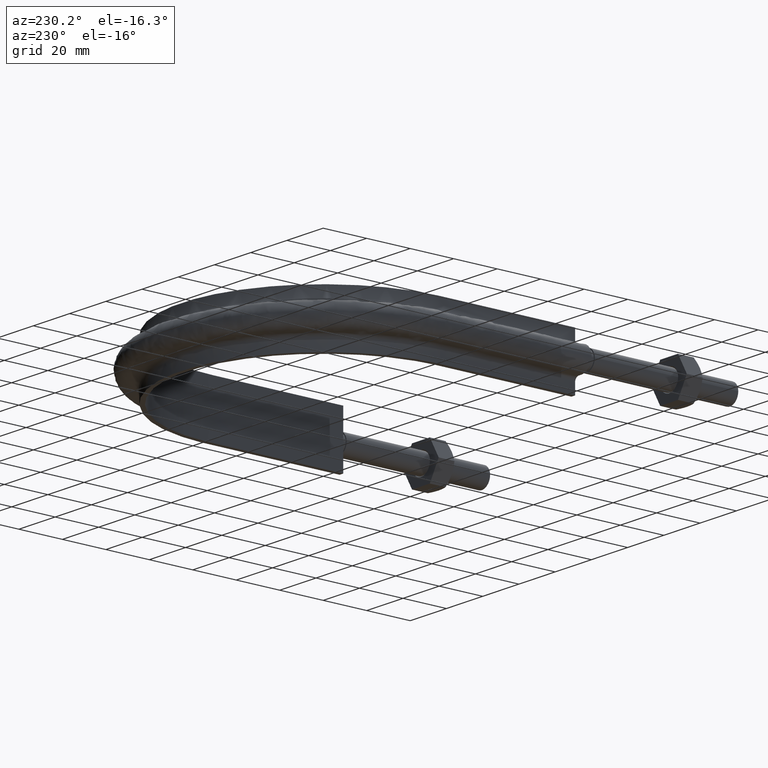
[diagram: clean part render]
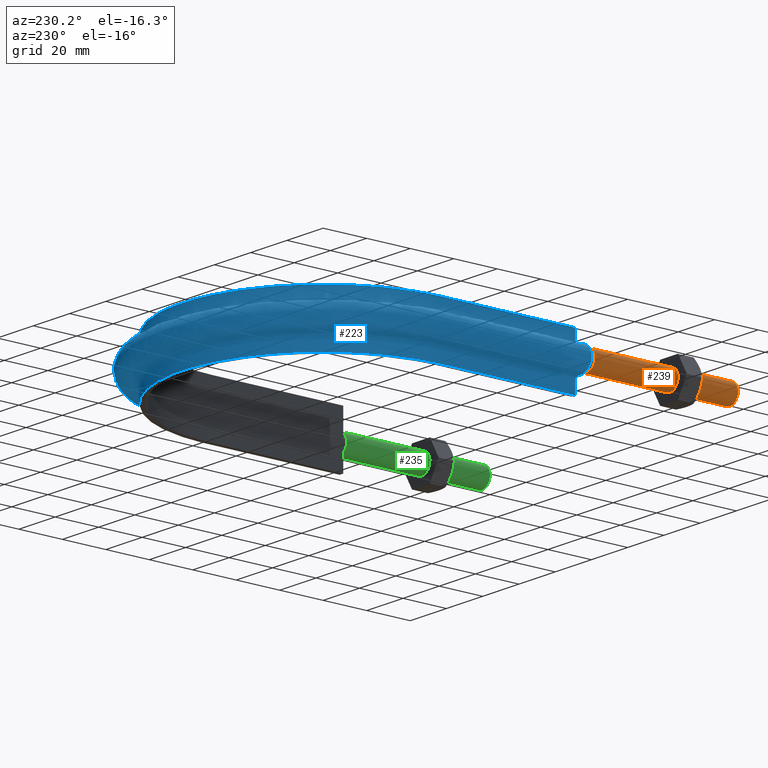
[diagram: same view with three faces highlighted in distinct colors, each labeled with its STEP entity id]
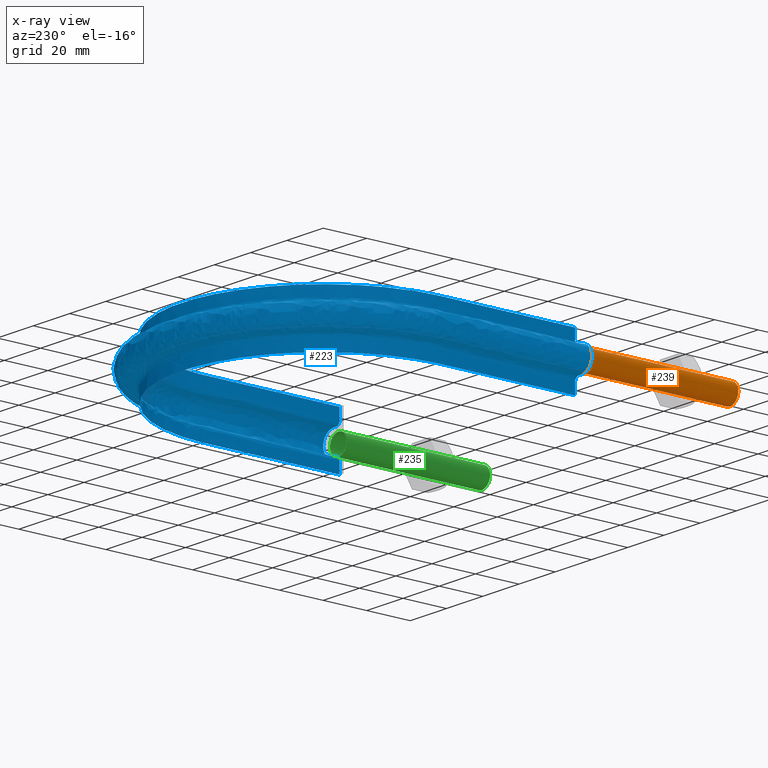
[diagram: x-ray of the same camera — body ghosted, the three highlighted faces saturated]
A machine part, auxiliary view with three faces highlighted in distinct colors.
The next image is the same camera in x-ray (body ghosted, the three faces saturated) — at least one of them is partly hidden behind the body in this view.
Their STEP definitions:

[orange] entity #239 — the highlighted cylindrical surface (bore or boss wall) has radius 4.6 mm, axis along (0, 1, 0).
#239 = ADVANCED_FACE( '', ( #340, #341 ), #342, .T. );
#340 = FACE_OUTER_BOUND( '', #1162, .T. );
#341 = FACE_OUTER_BOUND( '', #1163, .T. );
#342 = CYLINDRICAL_SURFACE( '', #1164, 4.59999999999999 );
#1162 = EDGE_LOOP( '', ( #1427 ) );
#1163 = EDGE_LOOP( '', ( #1428 ) );
#1164 = AXIS2_PLACEMENT_3D( '', #1429, #1430, #1431 );
#1427 = ORIENTED_EDGE( '', *, *, #1861, .T. );
#1428 = ORIENTED_EDGE( '', *, *, #1862, .F. );
#1429 = CARTESIAN_POINT( '', ( -68.5000000000000, 66.0000000000000, 1.21236029028415E-014 ) );
#1430 = DIRECTION( '', ( 1.22460635382238E-016, 1.00000000000000, 1.83690953073357E-016 ) );
#1431 = DIRECTION( '', ( -1.00000000000000, 1.22460635382238E-016, 0.000000000000000 ) );
#1861 = EDGE_CURVE( '', #2037, #2037, #2038, .T. );
#1862 = EDGE_CURVE( '', #2039, #2039, #2040, .T. );
#2037 = VERTEX_POINT( '', #2523 );
#2038 = CIRCLE( '', #2524, 4.59999999999999 );
#2039 = VERTEX_POINT( '', #2525 );
#2040 = CIRCLE( '', #2526, 4.59999999999999 );
#2523 = CARTESIAN_POINT( '', ( -73.1000000000000, 66.0000000000000, 1.21236029028415E-014 ) );
#2524 = AXIS2_PLACEMENT_3D( '', #2931, #2932, #2933 );
#2525 = CARTESIAN_POINT( '', ( -73.1000000000000, 8.95187244644158E-015, 0.000000000000000 ) );
#2526 = AXIS2_PLACEMENT_3D( '', #2934, #2935, #2936 );
#2931 = CARTESIAN_POINT( '', ( -68.5000000000000, 66.0000000000000, 1.21236029028415E-014 ) );
#2932 = DIRECTION( '', ( -1.22460635382238E-016, -1.00000000000000, -1.83690953073357E-016 ) );
#2933 = DIRECTION( '', ( -1.00000000000000, 1.22460635382238E-016, 0.000000000000000 ) );
#2934 = CARTESIAN_POINT( '', ( -68.5000000000000, 8.38855352368328E-015, 0.000000000000000 ) );
#2935 = DIRECTION( '', ( -1.22460635382238E-016, -1.00000000000000, -1.83690953073357E-016 ) );
#2936 = DIRECTION( '', ( -1.00000000000000, 1.22460635382238E-016, 0.000000000000000 ) );

[blue] entity #223 — the highlighted face is a freeform B-spline surface patch.
#223 = ADVANCED_FACE( '', ( #303 ), #304, .F. );
#303 = FACE_OUTER_BOUND( '', #471, .T. );
#304 = B_SPLINE_SURFACE_WITH_KNOTS( '', 3, 3, ( ( #472, #473, #474, #475, #476, #477, #478, #479, #480, #481, #482, #483, #484, #485, #486, #487 ), ( #488, #489, #490, #491, #492, #493, #494, #495, #496, #497, #498, #499, #500, #501, #502, #503 ), ( #504, #505, #506, #507, #508, #509, #510, #511, #512, #513, #514, #515, #516, #517, #518, #519 ), ( #520, #521, #522, #523, #524, #525, #526, #527, #528, #529, #530, #531, #532, #533, #534, #535 ), ( #536, #537, #538, #539, #540, #541, #542, #543, #544, #545, #546, #547, #548, #549, #550, #551 ), ( #552, #553, #554, #555, #556, #557, #558, #559, #560, #561, #562, #563, #564, #565, #566, #567 ), ( #568, #569, #570, #571, #572, #573, #574, #575, #576, #577, #578, #579, #580, #581, #582, #583 ), ( #584, #585, #586, #587, #588, #589, #590, #591, #592, #593, #594, #595, #596, #597, #598, #599 ), ( #600, #601, #602, #603, #604, #605, #606, #607, #608, #609, #610, #611, #612, #613, #614, #615 ), ( #616, #617, #618, #619, #620, #621, #622, #623, #624, #625, #626, #627, #628, #629, #630, #631 ), ( #632, #633, #634, #635, #636, #637, #638, #639, #640, #641, #642, #643, #644, #645, #646, #647 ), ( #648, #649, #650, #651, #652, #653, #654, #655, #656, #657, #658, #659, #660, #661, #662, #663 ), ( #664, #665, #666, #667, #668, #669, #670, #671, #672, #673, #674, #675, #676, #677, #678, #679 ), ( #680, #681, #682, #683, #684, #685, #686, #687, #688, #689, #690, #691, #692, #693, #694, #695 ), ( #696, #697, #698, #699, #700, #701, #702, #703, #704, #705, #706, #707, #708, #709, #710, #711 ), ( #712, #713, #714, #715, #716, #717, #718, #719, #720, #721, #722, #723, #724, #725, #726, #727 ), ( #728, #729, #730, #731, #732, #733, #734, #735, #736, #737, #738, #739, #740, #741, #742, #743 ), ( #744, #745, #746, #747, #748, #749, #750, #751, #752, #753, #754, #755, #756, #757, #758, #759 ), ( #760, #761, #762, #763, #764, #765, #766, #767, #768, #769, #770, #771, #772, #773, #774, #775 ), ( #776, #777, #778, #779, #780, #781, #782, #783, #784, #785, #786, #787, #788, #789, #790, #791 ), ( #792, #793, #794, #795, #796, #797, #798, #799, #800, #801, #802, #803, #804, #805, #806, #807 ), ( #808, #809, #810, #811, #812, #813, #814, #815, #816, #817, #818, #819, #820, #821, #822, #823 ), ( #824, #825, #826, #827, #828, #829, #830, #831, #832, #833, #834, #835, #836, #837, #838, #839 ), ( #840, #841, #842, #843, #844, #845, #846, #847, #848, #849, #850, #851, #852, #853, #854, #855 ), ( #856, #857, #858, #859, #860, #861, #862, #863, #864, #865, #866, #867, #868, #869, #870, #871 ), ( #872, #873, #874, #875, #876, #877, #878, #879, #880, #881, #882, #883, #884, #885, #886, #887 ), ( #888, #889, #890, #891, #892, #893, #894, #895, #896, #897, #898, #899, #900, #901, #902, #903 ), ( #904, #905, #906, #907, #908, #909, #910, #911, #912, #913, #914, #915, #916, #917, #918, #919 ), ( #920, #921, #922, #923, #924, #925, #926, #927, #928, #929, #930, #931, #932, #933, #934, #935 ), ( #936, #937, #938, #939, #940, #941, #942, #943, #944, #945, #946, #947, #948, #949, #950, #951 ), ( #952, #953, #954, #955, #956, #957, #958, #959, #960, #961, #962, #963, #964, #965, #966, #967 ) ), .UNSPECIFIED., .F., .F., .F., ( 4, 3, 1, 1, 1, 3, 3, 1, 1, 1, 3, 3, 1, 1, 1, 3, 4 ), ( 4, 3, 1, 1, 1, 1, 1, 1, 3, 4 ), ( 0.105263157894737, 0.157894736842105, 0.210526315789474, 0.263157894736842, 0.315789473684211, 0.368421052631579, 0.421052631578947, 0.473684210526316, 0.526315789473684, 0.578947368421053, 0.631578947368421, 0.684210526315789, 0.736842105263158, 0.789473684210526, 0.842105263157895, 0.894736842105263, 0.947368421052632 ), ( 0.000000000000000, 1.00000000000000, 2.00000000000000, 3.00000000000000, 4.00000000000000, 5.00000000000000, 6.00000000000000, 7.00000000000000, 8.00000000000000, 9.00000000000000 ), .UNSPECIFIED. );
#471 = EDGE_LOOP( '', ( #1326, #1327, #1328, #1329 ) );
#472 = CARTESIAN_POINT( '', ( -65.0000000000000, 64.4100000000000, 12.5000000000000 ) );
#473 = CARTESIAN_POINT( '', ( -65.0000000000000, 86.2766666666667, 12.5000000000000 ) );
#474 = CARTESIAN_POINT( '', ( -65.0000000000000, 108.143333333333, 12.5000000000000 ) );
#475 = CARTESIAN_POINT( '', ( -65.0000000000000, 130.010000000000, 12.5000000000000 ) );
#476 = CARTESIAN_POINT( '', ( -65.0000000000000, 139.722642194517, 12.5000000000000 ) );
#477 = CARTESIAN_POINT( '', ( -60.5621560385809, 159.179409743994, 12.5000000000000 ) );
#478 = CARTESIAN_POINT( '', ( -41.9103123469103, 182.562760860094, 12.5000000000000 ) );
#479 = CARTESIAN_POINT( '', ( -14.9576172986841, 195.543824978164, 12.5000000000000 ) );
#480 = CARTESIAN_POINT( '', ( 14.9576172986842, 195.543824978164, 12.5000000000000 ) );
#481 = CARTESIAN_POINT( '', ( 41.9103123469103, 182.562760860094, 12.5000000000000 ) );
#482 = CARTESIAN_POINT( '', ( 60.5621560385810, 159.179409743994, 12.5000000000000 ) );
#483 = CARTESIAN_POINT( '', ( 65.0000000000000, 139.722642194517, 12.5000000000000 ) );
#484 = CARTESIAN_POINT( '', ( 65.0000000000001, 130.010000000000, 12.5000000000000 ) );
#485 = CARTESIAN_POINT( '', ( 65.0000000000000, 108.143333333333, 12.5000000000000 ) );
#486 = CARTESIAN_POINT( '', ( 65.0000000000000, 86.2766666666666, 12.5000000000000 ) );
#487 = CARTESIAN_POINT( '', ( 65.0000000000000, 64.4100000000000, 12.5000000000000 ) );
#488 = CARTESIAN_POINT( '', ( -65.0000000000000, 64.4100000000000, 10.8666666666667 ) );
#489 = CARTESIAN_POINT( '', ( -65.0000000000000, 86.2766666666667, 10.8666666666667 ) );
#490 = CARTESIAN_POINT( '', ( -65.0000000000000, 108.143333333333, 10.8666666666667 ) );
#491 = CARTESIAN_POINT( '', ( -65.0000000000000, 130.010000000000, 10.8666666666667 ) );
#492 = CARTESIAN_POINT( '', ( -65.0000000000000, 139.722642194517, 10.8666666666667 ) );
#493 = CARTESIAN_POINT( '', ( -60.5621560385809, 159.179409743994, 10.8666666666667 ) );
#494 = CARTESIAN_POINT( '', ( -41.9103123469103, 182.562760860094, 10.8666666666667 ) );
#495 = CARTESIAN_POINT( '', ( -14.9576172986841, 195.543824978164, 10.8666666666667 ) );
#496 = CARTESIAN_POINT( '', ( 14.9576172986842, 195.543824978164, 10.8666666666667 ) );
#497 = CARTESIAN_POINT( '', ( 41.9103123469103, 182.562760860094, 10.8666666666667 ) );
#498 = CARTESIAN_POINT( '', ( 60.5621560385810, 159.179409743994, 10.8666666666667 ) );
#499 = CARTESIAN_POINT( '', ( 65.0000000000000, 139.722642194517, 10.8666666666667 ) );
#500 = CARTESIAN_POINT( '', ( 65.0000000000001, 130.010000000000, 10.8666666666667 ) );
#501 = CARTESIAN_POINT( '', ( 65.0000000000000, 108.143333333333, 10.8666666666667 ) );
#502 = CARTESIAN_POINT( '', ( 65.0000000000000, 86.2766666666666, 10.8666666666667 ) );
#503 = CARTESIAN_POINT( '', ( 65.0000000000000, 64.4100000000000, 10.8666666666667 ) );
#504 = CARTESIAN_POINT( '', ( -65.0000000000000, 64.4100000000000, 9.23333333333333 ) );
#505 = CARTESIAN_POINT( '', ( -65.0000000000000, 86.2766666666667, 9.23333333333333 ) );
#506 = CARTESIAN_POINT( '', ( -65.0000000000000, 108.143333333333, 9.23333333333333 ) );
#507 = CARTESIAN_POINT( '', ( -65.0000000000000, 130.010000000000, 9.23333333333333 ) );
#508 = CARTESIAN_POINT( '', ( -65.0000000000000, 139.722642194517, 9.23333333333333 ) );
#509 = CARTESIAN_POINT( '', ( -60.5621560385809, 159.179409743994, 9.23333333333333 ) );
#510 = CARTESIAN_POINT( '', ( -41.9103123469103, 182.562760860094, 9.23333333333332 ) );
#511 = CARTESIAN_POINT( '', ( -14.9576172986841, 195.543824978164, 9.23333333333334 ) );
#512 = CARTESIAN_POINT( '', ( 14.9576172986842, 195.543824978164, 9.23333333333333 ) );
#513 = CARTESIAN_POINT( '', ( 41.9103123469103, 182.562760860094, 9.23333333333332 ) );
#514 = CARTESIAN_POINT( '', ( 60.5621560385810, 159.179409743994, 9.23333333333333 ) );
#515 = CARTESIAN_POINT( '', ( 65.0000000000000, 139.722642194517, 9.23333333333333 ) );
#516 = CARTESIAN_POINT( '', ( 65.0000000000001, 130.010000000000, 9.23333333333333 ) );
#517 = CARTESIAN_POINT( '', ( 65.0000000000000, 108.143333333333, 9.23333333333333 ) );
#518 = CARTESIAN_POINT( '', ( 65.0000000000000, 86.2766666666666, 9.23333333333333 ) );
#519 = CARTESIAN_POINT( '', ( 65.0000000000000, 64.4100000000000, 9.23333333333333 ) );
#520 = CARTESIAN_POINT( '', ( -65.0000000000000, 64.4100000000000, 7.60000000000000 ) );
#521 = CARTESIAN_POINT( '', ( -65.0000000000000, 86.2766666666667, 7.60000000000000 ) );
#522 = CARTESIAN_POINT( '', ( -65.0000000000000, 108.143333333333, 7.60000000000000 ) );
#523 = CARTESIAN_POINT( '', ( -65.0000000000000, 130.010000000000, 7.60000000000000 ) );
#524 = CARTESIAN_POINT( '', ( -65.0000000000000, 139.722642194517, 7.60000000000000 ) );
#525 = CARTESIAN_POINT( '', ( -60.5621560385809, 159.179409743994, 7.60000000000000 ) );
#526 = CARTESIAN_POINT( '', ( -41.9103123469103, 182.562760860094, 7.59999999999999 ) );
#527 = CARTESIAN_POINT( '', ( -14.9576172986841, 195.543824978164, 7.60000000000001 ) );
#528 = CARTESIAN_POINT( '', ( 14.9576172986842, 195.543824978164, 7.59999999999999 ) );
#529 = CARTESIAN_POINT( '', ( 41.9103123469103, 182.562760860094, 7.59999999999999 ) );
#530 = CARTESIAN_POINT( '', ( 60.5621560385810, 159.179409743994, 7.59999999999999 ) );
#531 = CARTESIAN_POINT( '', ( 65.0000000000000, 139.722642194517, 7.60000000000000 ) );
#532 = CARTESIAN_POINT( '', ( 65.0000000000001, 130.010000000000, 7.60000000000000 ) );
#533 = CARTESIAN_POINT( '', ( 65.0000000000000, 108.143333333333, 7.60000000000000 ) );
#534 = CARTESIAN_POINT( '', ( 65.0000000000000, 86.2766666666666, 7.60000000000000 ) );
#535 = CARTESIAN_POINT( '', ( 65.0000000000000, 64.4100000000000, 7.60000000000000 ) );
#536 = CARTESIAN_POINT( '', ( -65.0000000000000, 64.4100000000000, 7.33823584172333 ) );
#537 = CARTESIAN_POINT( '', ( -65.0000000000000, 86.2766666666667, 7.33823584172333 ) );
#538 = CARTESIAN_POINT( '', ( -65.0000000000000, 108.143333333333, 7.33823584172333 ) );
#539 = CARTESIAN_POINT( '', ( -65.0000000000000, 130.010000000000, 7.33823584172333 ) );
#540 = CARTESIAN_POINT( '', ( -65.0000000000000, 139.722642194517, 7.33823584172333 ) );
#541 = CARTESIAN_POINT( '', ( -60.5621560385809, 159.179409743994, 7.33823584172333 ) );
#542 = CARTESIAN_POINT( '', ( -41.9103123469103, 182.562760860094, 7.33823584172332 ) );
#543 = CARTESIAN_POINT( '', ( -14.9576172986841, 195.543824978164, 7.33823584172334 ) );
#544 = CARTESIAN_POINT( '', ( 14.9576172986842, 195.543824978164, 7.33823584172333 ) );
#545 = CARTESIAN_POINT( '', ( 41.9103123469103, 182.562760860094, 7.33823584172333 ) );
#546 = CARTESIAN_POINT( '', ( 60.5621560385810, 159.179409743994, 7.33823584172333 ) );
#547 = CARTESIAN_POINT( '', ( 65.0000000000000, 139.722642194517, 7.33823584172333 ) );
#548 = CARTESIAN_POINT( '', ( 65.0000000000001, 130.010000000000, 7.33823584172333 ) );
#549 = CARTESIAN_POINT( '', ( 65.0000000000000, 108.143333333333, 7.33823584172333 ) );
#550 = CARTESIAN_POINT( '', ( 65.0000000000000, 86.2766666666666, 7.33823584172333 ) );
#551 = CARTESIAN_POINT( '', ( 65.0000000000000, 64.4100000000000, 7.33823584172333 ) );
#552 = CARTESIAN_POINT( '', ( -65.1041362568359, 64.4100000000000, 6.81470752517001 ) );
#553 = CARTESIAN_POINT( '', ( -65.1041362568359, 86.2766666666667, 6.81470752517001 ) );
#554 = CARTESIAN_POINT( '', ( -65.1041362568359, 108.143333333333, 6.81470752517001 ) );
#555 = CARTESIAN_POINT( '', ( -65.1041362568359, 130.010000000000, 6.81470752517001 ) );
#556 = CARTESIAN_POINT( '', ( -65.1041362568359, 139.738487808563, 6.81470752517001 ) );
#557 = CARTESIAN_POINT( '', ( -60.6591824422081, 159.226009860854, 6.81470752517001 ) );
#558 = CARTESIAN_POINT( '', ( -41.9774567015354, 182.646990200976, 6.81470752517000 ) );
#559 = CARTESIAN_POINT( '', ( -14.9815808414021, 195.648809522138, 6.81470752517001 ) );
#560 = CARTESIAN_POINT( '', ( 14.9815808414021, 195.648809522138, 6.81470752517000 ) );
#561 = CARTESIAN_POINT( '', ( 41.9774567015354, 182.646990200976, 6.81470752517000 ) );
#562 = CARTESIAN_POINT( '', ( 60.6591824422082, 159.226009860854, 6.81470752517001 ) );
#563 = CARTESIAN_POINT( '', ( 65.1041362568359, 139.738487808563, 6.81470752517001 ) );
#564 = CARTESIAN_POINT( '', ( 65.1041362568360, 130.010000000000, 6.81470752517001 ) );
#565 = CARTESIAN_POINT( '', ( 65.1041362568359, 108.143333333333, 6.81470752517001 ) );
#566 = CARTESIAN_POINT( '', ( 65.1041362568359, 86.2766666666666, 6.81470752517001 ) );
#567 = CARTESIAN_POINT( '', ( 65.1041362568359, 64.4100000000000, 6.81470752517001 ) );
#568 = CARTESIAN_POINT( '', ( -65.5489687109389, 64.4100000000000, 6.14896871093887 ) );
#569 = CARTESIAN_POINT( '', ( -65.5489687109389, 86.2766666666667, 6.14896871093887 ) );
#570 = CARTESIAN_POINT( '', ( -65.5489687109389, 108.143333333333, 6.14896871093887 ) );
#571 = CARTESIAN_POINT( '', ( -65.5489687109389, 130.010000000000, 6.14896871093887 ) );
#572 = CARTESIAN_POINT( '', ( -65.5489687109389, 139.806174545127, 6.14896871093887 ) );
#573 = CARTESIAN_POINT( '', ( -61.0736441729221, 159.425068718682, 6.14896871093887 ) );
#574 = CARTESIAN_POINT( '', ( -42.2642731183584, 183.006787504534, 6.14896871093886 ) );
#575 = CARTESIAN_POINT( '', ( -15.0839444354099, 196.097265552326, 6.14896871093888 ) );
#576 = CARTESIAN_POINT( '', ( 15.0839444354099, 196.097265552326, 6.14896871093887 ) );
#577 = CARTESIAN_POINT( '', ( 42.2642731183585, 183.006787504534, 6.14896871093887 ) );
#578 = CARTESIAN_POINT( '', ( 61.0736441729222, 159.425068718682, 6.14896871093887 ) );
#579 = CARTESIAN_POINT( '', ( 65.5489687109389, 139.806174545127, 6.14896871093887 ) );
#580 = CARTESIAN_POINT( '', ( 65.5489687109389, 130.010000000000, 6.14896871093887 ) );
#581 = CARTESIAN_POINT( '', ( 65.5489687109389, 108.143333333333, 6.14896871093887 ) );
#582 = CARTESIAN_POINT( '', ( 65.5489687109389, 86.2766666666666, 6.14896871093887 ) );
#583 = CARTESIAN_POINT( '', ( 65.5489687109389, 64.4100000000000, 6.14896871093887 ) );
#584 = CARTESIAN_POINT( '', ( -66.2147075251700, 64.4100000000000, 5.70413625683590 ) );
#585 = CARTESIAN_POINT( '', ( -66.2147075251700, 86.2766666666667, 5.70413625683590 ) );
#586 = CARTESIAN_POINT( '', ( -66.2147075251700, 108.143333333333, 5.70413625683590 ) );
#587 = CARTESIAN_POINT( '', ( -66.2147075251700, 130.010000000000, 5.70413625683590 ) );
#588 = CARTESIAN_POINT( '', ( -66.2147075251700, 139.907474905125, 5.70413625683590 ) );
#589 = CARTESIAN_POINT( '', ( -61.6939299875130, 159.722981352417, 5.70413625683591 ) );
#590 = CARTESIAN_POINT( '', ( -42.6935242206028, 183.545262222430, 5.70413625683590 ) );
#591 = CARTESIAN_POINT( '', ( -15.2371423800891, 196.768427431407, 5.70413625683591 ) );
#592 = CARTESIAN_POINT( '', ( 15.2371423800892, 196.768427431407, 5.70413625683590 ) );
#593 = CARTESIAN_POINT( '', ( 42.6935242206029, 183.545262222430, 5.70413625683590 ) );
#594 = CARTESIAN_POINT( '', ( 61.6939299875130, 159.722981352417, 5.70413625683590 ) );
#595 = CARTESIAN_POINT( '', ( 66.2147075251701, 139.907474905125, 5.70413625683590 ) );
#596 = CARTESIAN_POINT( '', ( 66.2147075251701, 130.010000000000, 5.70413625683590 ) );
#597 = CARTESIAN_POINT( '', ( 66.2147075251700, 108.143333333333, 5.70413625683590 ) );
#598 = CARTESIAN_POINT( '', ( 66.2147075251700, 86.2766666666666, 5.70413625683590 ) );
#599 = CARTESIAN_POINT( '', ( 66.2147075251700, 64.4100000000000, 5.70413625683590 ) );
#600 = CARTESIAN_POINT( '', ( -66.7382358417233, 64.4100000000000, 5.59999999999999 ) );
#601 = CARTESIAN_POINT( '', ( -66.7382358417233, 86.2766666666667, 5.59999999999999 ) );
#602 = CARTESIAN_POINT( '', ( -66.7382358417233, 108.143333333333, 5.59999999999999 ) );
#603 = CARTESIAN_POINT( '', ( -66.7382358417233, 130.010000000000, 5.59999999999999 ) );
#604 = CARTESIAN_POINT( '', ( -66.7382358417233, 139.987136186400, 5.59999999999999 ) );
#605 = CARTESIAN_POINT( '', ( -62.1817146582471, 159.957255960244, 5.60000000000000 ) );
#606 = CARTESIAN_POINT( '', ( -43.0310816862829, 183.968711714244, 5.59999999999999 ) );
#607 = CARTESIAN_POINT( '', ( -15.3576152447664, 197.296220375395, 5.60000000000000 ) );
#608 = CARTESIAN_POINT( '', ( 15.3576152447665, 197.296220375395, 5.59999999999999 ) );
#609 = CARTESIAN_POINT( '', ( 43.0310816862829, 183.968711714244, 5.59999999999999 ) );
#610 = CARTESIAN_POINT( '', ( 62.1817146582472, 159.957255960244, 5.59999999999999 ) );
#611 = CARTESIAN_POINT( '', ( 66.7382358417234, 139.987136186400, 5.59999999999999 ) );
#612 = CARTESIAN_POINT( '', ( 66.7382358417234, 130.010000000000, 5.59999999999999 ) );
#613 = CARTESIAN_POINT( '', ( 66.7382358417234, 108.143333333333, 5.59999999999999 ) );
#614 = CARTESIAN_POINT( '', ( 66.7382358417234, 86.2766666666666, 5.59999999999999 ) );
#615 = CARTESIAN_POINT( '', ( 66.7382358417234, 64.4100000000000, 5.59999999999999 ) );
#616 = CARTESIAN_POINT( '', ( -67.0000000000000, 64.4100000000000, 5.59999999999999 ) );
#617 = CARTESIAN_POINT( '', ( -67.0000000000000, 86.2766666666667, 5.59999999999999 ) );
#618 = CARTESIAN_POINT( '', ( -67.0000000000000, 108.143333333333, 5.59999999999999 ) );
#619 = CARTESIAN_POINT( '', ( -67.0000000000000, 130.010000000000, 5.59999999999999 ) );
#620 = CARTESIAN_POINT( '', ( -67.0000000000000, 140.026966827037, 5.59999999999999 ) );
#621 = CARTESIAN_POINT( '', ( -62.4256069936142, 160.074393264158, 5.60000000000000 ) );
#622 = CARTESIAN_POINT( '', ( -43.1998604191229, 184.180436460150, 5.59999999999999 ) );
#623 = CARTESIAN_POINT( '', ( -15.4178516771051, 197.560116847389, 5.60000000000000 ) );
#624 = CARTESIAN_POINT( '', ( 15.4178516771052, 197.560116847389, 5.59999999999999 ) );
#625 = CARTESIAN_POINT( '', ( 43.1998604191230, 184.180436460150, 5.59999999999999 ) );
#626 = CARTESIAN_POINT( '', ( 62.4256069936142, 160.074393264158, 5.59999999999999 ) );
#627 = CARTESIAN_POINT( '', ( 67.0000000000000, 140.026966827037, 5.59999999999999 ) );
#628 = CARTESIAN_POINT( '', ( 67.0000000000001, 130.010000000000, 5.59999999999999 ) );
#629 = CARTESIAN_POINT( '', ( 67.0000000000000, 108.143333333333, 5.59999999999999 ) );
#630 = CARTESIAN_POINT( '', ( 67.0000000000000, 86.2766666666666, 5.59999999999999 ) );
#631 = CARTESIAN_POINT( '', ( 67.0000000000000, 64.4100000000000, 5.59999999999999 ) );
#632 = CARTESIAN_POINT( '', ( -67.5000000000000, 64.4100000000000, 5.60000000000000 ) );
#633 = CARTESIAN_POINT( '', ( -67.5000000000000, 86.2766666666667, 5.60000000000000 ) );
#634 = CARTESIAN_POINT( '', ( -67.5000000000000, 108.143333333333, 5.60000000000000 ) );
#635 = CARTESIAN_POINT( '', ( -67.5000000000000, 130.010000000000, 5.60000000000000 ) );
#636 = CARTESIAN_POINT( '', ( -67.5000000000000, 140.103047985167, 5.60000000000000 ) );
#637 = CARTESIAN_POINT( '', ( -62.8914697323725, 160.298139144199, 5.60000000000000 ) );
#638 = CARTESIAN_POINT( '', ( -43.5222474371760, 184.584855360165, 5.60000000000000 ) );
#639 = CARTESIAN_POINT( '', ( -15.5329102717104, 198.064189814695, 5.60000000000001 ) );
#640 = CARTESIAN_POINT( '', ( 15.5329102717105, 198.064189814695, 5.60000000000000 ) );
#641 = CARTESIAN_POINT( '', ( 43.5222474371761, 184.584855360165, 5.60000000000000 ) );
#642 = CARTESIAN_POINT( '', ( 62.8914697323725, 160.298139144199, 5.60000000000000 ) );
#643 = CARTESIAN_POINT( '', ( 67.5000000000000, 140.103047985167, 5.60000000000000 ) );
#644 = CARTESIAN_POINT( '', ( 67.5000000000000, 130.010000000000, 5.60000000000000 ) );
#645 = CARTESIAN_POINT( '', ( 67.5000000000000, 108.143333333333, 5.60000000000000 ) );
#646 = CARTESIAN_POINT( '', ( 67.5000000000000, 86.2766666666666, 5.60000000000000 ) );
#647 = CARTESIAN_POINT( '', ( 67.5000000000000, 64.4100000000000, 5.60000000000000 ) );
#648 = CARTESIAN_POINT( '', ( -68.0000000000000, 64.4100000000000, 5.60000000000000 ) );
#649 = CARTESIAN_POINT( '', ( -68.0000000000000, 86.2766666666667, 5.60000000000000 ) );
#650 = CARTESIAN_POINT( '', ( -68.0000000000000, 108.143333333333, 5.60000000000000 ) );
#651 = CARTESIAN_POINT( '', ( -68.0000000000000, 130.010000000000, 5.60000000000000 ) );
#652 = CARTESIAN_POINT( '', ( -68.0000000000000, 140.179129143297, 5.60000000000000 ) );
#653 = CARTESIAN_POINT( '', ( -63.3573324711308, 160.521885024240, 5.60000000000000 ) );
#654 = CARTESIAN_POINT( '', ( -43.8446344552292, 184.989274260179, 5.60000000000000 ) );
#655 = CARTESIAN_POINT( '', ( -15.6479688663156, 198.568262782001, 5.60000000000001 ) );
#656 = CARTESIAN_POINT( '', ( 15.6479688663157, 198.568262782001, 5.60000000000000 ) );
#657 = CARTESIAN_POINT( '', ( 43.8446344552293, 184.989274260179, 5.60000000000000 ) );
#658 = CARTESIAN_POINT( '', ( 63.3573324711308, 160.521885024240, 5.60000000000000 ) );
#659 = CARTESIAN_POINT( '', ( 68.0000000000000, 140.179129143297, 5.60000000000000 ) );
#660 = CARTESIAN_POINT( '', ( 68.0000000000000, 130.010000000000, 5.60000000000000 ) );
#661 = CARTESIAN_POINT( '', ( 68.0000000000000, 108.143333333333, 5.60000000000000 ) );
#662 = CARTESIAN_POINT( '', ( 68.0000000000000, 86.2766666666666, 5.60000000000000 ) );
#663 = CARTESIAN_POINT( '', ( 68.0000000000000, 64.4100000000000, 5.60000000000000 ) );
#664 = CARTESIAN_POINT( '', ( -68.5000000000000, 64.4100000000000, 5.60000000000000 ) );
#665 = CARTESIAN_POINT( '', ( -68.5000000000000, 86.2766666666667, 5.60000000000000 ) );
#666 = CARTESIAN_POINT( '', ( -68.5000000000000, 108.143333333333, 5.60000000000000 ) );
#667 = CARTESIAN_POINT( '', ( -68.5000000000000, 130.010000000000, 5.60000000000000 ) );
#668 = CARTESIAN_POINT( '', ( -68.5000000000000, 140.255210301427, 5.60000000000000 ) );
#669 = CARTESIAN_POINT( '', ( -63.8231952098891, 160.745630904281, 5.60000000000000 ) );
#670 = CARTESIAN_POINT( '', ( -44.1670214732823, 185.393693160193, 5.60000000000000 ) );
#671 = CARTESIAN_POINT( '', ( -15.7630274609209, 199.072335749307, 5.60000000000001 ) );
#672 = CARTESIAN_POINT( '', ( 15.7630274609210, 199.072335749307, 5.60000000000000 ) );
#673 = CARTESIAN_POINT( '', ( 44.1670214732824, 185.393693160193, 5.60000000000000 ) );
#674 = CARTESIAN_POINT( '', ( 63.8231952098892, 160.745630904281, 5.60000000000000 ) );
#675 = CARTESIAN_POINT( '', ( 68.5000000000000, 140.255210301427, 5.60000000000000 ) );
#676 = CARTESIAN_POINT( '', ( 68.5000000000000, 130.010000000000, 5.60000000000000 ) );
#677 = CARTESIAN_POINT( '', ( 68.5000000000000, 108.143333333333, 5.60000000000000 ) );
#678 = CARTESIAN_POINT( '', ( 68.5000000000000, 86.2766666666666, 5.60000000000000 ) );
#679 = CARTESIAN_POINT( '', ( 68.5000000000000, 64.4100000000000, 5.60000000000000 ) );
#680 = CARTESIAN_POINT( '', ( -69.9627416997969, 64.4100000000000, 5.60000000000000 ) );
#681 = CARTESIAN_POINT( '', ( -69.9627416997969, 86.2766666666667, 5.60000000000000 ) );
#682 = CARTESIAN_POINT( '', ( -69.9627416997969, 108.143333333333, 5.60000000000000 ) );
#683 = CARTESIAN_POINT( '', ( -69.9627416997969, 130.010000000000, 5.60000000000000 ) );
#684 = CARTESIAN_POINT( '', ( -69.9627416997969, 140.477784466558, 5.60000000000000 ) );
#685 = CARTESIAN_POINT( '', ( -65.1860689186159, 161.400195762068, 5.60000000000000 ) );
#686 = CARTESIAN_POINT( '', ( -45.1101593428414, 186.576813938667, 5.59999999999999 ) );
#687 = CARTESIAN_POINT( '', ( -16.0996294694192, 200.546992847346, 5.60000000000001 ) );
#688 = CARTESIAN_POINT( '', ( 16.0996294694193, 200.546992847346, 5.60000000000000 ) );
#689 = CARTESIAN_POINT( '', ( 45.1101593428415, 186.576813938667, 5.59999999999999 ) );
#690 = CARTESIAN_POINT( '', ( 65.1860689186160, 161.400195762068, 5.59999999999999 ) );
#691 = CARTESIAN_POINT( '', ( 69.9627416997970, 140.477784466558, 5.60000000000000 ) );
#692 = CARTESIAN_POINT( '', ( 69.9627416997970, 130.010000000000, 5.60000000000000 ) );
#693 = CARTESIAN_POINT( '', ( 69.9627416997970, 108.143333333333, 5.60000000000000 ) );
#694 = CARTESIAN_POINT( '', ( 69.9627416997970, 86.2766666666666, 5.60000000000000 ) );
#695 = CARTESIAN_POINT( '', ( 69.9627416997970, 64.4100000000000, 5.60000000000000 ) );
#696 = CARTESIAN_POINT( '', ( -72.8882250993908, 64.4100000000000, 4.38822509939086 ) );
#697 = CARTESIAN_POINT( '', ( -72.8882250993908, 86.2766666666667, 4.38822509939086 ) );
#698 = CARTESIAN_POINT( '', ( -72.8882250993908, 108.143333333333, 4.38822509939086 ) );
#699 = CARTESIAN_POINT( '', ( -72.8882250993908, 130.010000000000, 4.38822509939086 ) );
#700 = CARTESIAN_POINT( '', ( -72.8882250993908, 140.922932796821, 4.38822509939086 ) );
#701 = CARTESIAN_POINT( '', ( -67.9118163360695, 162.709325477643, 4.38822509939086 ) );
#702 = CARTESIAN_POINT( '', ( -46.9964350819596, 188.943055495614, 4.38822509939085 ) );
#703 = CARTESIAN_POINT( '', ( -16.7728334864158, 203.496307043423, 4.38822509939086 ) );
#704 = CARTESIAN_POINT( '', ( 16.7728334864159, 203.496307043423, 4.38822509939086 ) );
#705 = CARTESIAN_POINT( '', ( 46.9964350819597, 188.943055495614, 4.38822509939086 ) );
#706 = CARTESIAN_POINT( '', ( 67.9118163360695, 162.709325477643, 4.38822509939086 ) );
#707 = CARTESIAN_POINT( '', ( 72.8882250993909, 140.922932796821, 4.38822509939086 ) );
#708 = CARTESIAN_POINT( '', ( 72.8882250993909, 130.010000000000, 4.38822509939086 ) );
#709 = CARTESIAN_POINT( '', ( 72.8882250993909, 108.143333333333, 4.38822509939086 ) );
#710 = CARTESIAN_POINT( '', ( 72.8882250993909, 86.2766666666666, 4.38822509939086 ) );
#711 = CARTESIAN_POINT( '', ( 72.8882250993909, 64.4100000000000, 4.38822509939086 ) );
#712 = CARTESIAN_POINT( '', ( -74.7058874503046, 64.4100000000000, 1.38308419891421E-015 ) );
#713 = CARTESIAN_POINT( '', ( -74.7058874503046, 86.2766666666667, 1.38308419891421E-015 ) );
#714 = CARTESIAN_POINT( '', ( -74.7058874503045, 108.143333333333, 1.38308419891421E-015 ) );
#715 = CARTESIAN_POINT( '', ( -74.7058874503045, 130.010000000000, 1.38308419891421E-015 ) );
#716 = CARTESIAN_POINT( '', ( -74.7058874503046, 141.199512510315, 1.38308419891421E-015 ) );
#717 = CARTESIAN_POINT( '', ( -69.6053786579386, 163.522714402288, 1.38308419891421E-015 ) );
#718 = CARTESIAN_POINT( '', ( -48.1684165722367, 190.413249512722, 1.38308419891421E-015 ) );
#719 = CARTESIAN_POINT( '', ( -17.1911088375419, 205.328775952995, 1.38308419891421E-015 ) );
#720 = CARTESIAN_POINT( '', ( 17.1911088375420, 205.328775952995, 1.38308419891421E-015 ) );
#721 = CARTESIAN_POINT( '', ( 48.1684165722368, 190.413249512721, 1.38308419891421E-015 ) );
#722 = CARTESIAN_POINT( '', ( 69.6053786579386, 163.522714402288, 1.38308419891421E-015 ) );
#723 = CARTESIAN_POINT( '', ( 74.7058874503046, 141.199512510315, 1.38308419891421E-015 ) );
#724 = CARTESIAN_POINT( '', ( 74.7058874503046, 130.010000000000, 1.38308419891421E-015 ) );
#725 = CARTESIAN_POINT( '', ( 74.7058874503046, 108.143333333333, 1.38308419891421E-015 ) );
#726 = CARTESIAN_POINT( '', ( 74.7058874503046, 86.2766666666666, 1.38308419891421E-015 ) );
#727 = CARTESIAN_POINT( '', ( 74.7058874503046, 64.4100000000000, 1.38308419891421E-015 ) );
#728 = CARTESIAN_POINT( '', ( -72.8882250993908, 64.4100000000000, -4.38822509939086 ) );
#729 = CARTESIAN_POINT( '', ( -72.8882250993908, 86.2766666666667, -4.38822509939086 ) );
#730 = CARTESIAN_POINT( '', ( -72.8882250993908, 108.143333333333, -4.38822509939086 ) );
#731 = CARTESIAN_POINT( '', ( -72.8882250993908, 130.010000000000, -4.38822509939086 ) );
#732 = CARTESIAN_POINT( '', ( -72.8882250993908, 140.922932796821, -4.38822509939086 ) );
#733 = CARTESIAN_POINT( '', ( -67.9118163360695, 162.709325477643, -4.38822509939086 ) );
#734 = CARTESIAN_POINT( '', ( -46.9964350819596, 188.943055495614, -4.38822509939085 ) );
#735 = CARTESIAN_POINT( '', ( -16.7728334864158, 203.496307043423, -4.38822509939086 ) );
#736 = CARTESIAN_POINT( '', ( 16.7728334864159, 203.496307043423, -4.38822509939086 ) );
#737 = CARTESIAN_POINT( '', ( 46.9964350819597, 188.943055495614, -4.38822509939085 ) );
#738 = CARTESIAN_POINT( '', ( 67.9118163360695, 162.709325477643, -4.38822509939086 ) );
#739 = CARTESIAN_POINT( '', ( 72.8882250993909, 140.922932796821, -4.38822509939086 ) );
#740 = CARTESIAN_POINT( '', ( 72.8882250993909, 130.010000000000, -4.38822509939086 ) );
#741 = CARTESIAN_POINT( '', ( 72.8882250993909, 108.143333333333, -4.38822509939086 ) );
#742 = CARTESIAN_POINT( '', ( 72.8882250993909, 86.2766666666666, -4.38822509939086 ) );
#743 = CARTESIAN_POINT( '', ( 72.8882250993909, 64.4100000000000, -4.38822509939086 ) );
#744 = CARTESIAN_POINT( '', ( -69.9627416997969, 64.4100000000000, -5.59999999999999 ) );
#745 = CARTESIAN_POINT( '', ( -69.9627416997969, 86.2766666666667, -5.59999999999999 ) );
#746 = CARTESIAN_POINT( '', ( -69.9627416997969, 108.143333333333, -5.59999999999999 ) );
#747 = CARTESIAN_POINT( '', ( -69.9627416997969, 130.010000000000, -5.59999999999999 ) );
#748 = CARTESIAN_POINT( '', ( -69.9627416997969, 140.477784466558, -5.59999999999999 ) );
#749 = CARTESIAN_POINT( '', ( -65.1860689186159, 161.400195762068, -5.60000000000000 ) );
#750 = CARTESIAN_POINT( '', ( -45.1101593428414, 186.576813938667, -5.59999999999999 ) );
#751 = CARTESIAN_POINT( '', ( -16.0996294694192, 200.546992847346, -5.60000000000000 ) );
#752 = CARTESIAN_POINT( '', ( 16.0996294694193, 200.546992847346, -5.59999999999999 ) );
#753 = CARTESIAN_POINT( '', ( 45.1101593428415, 186.576813938667, -5.59999999999999 ) );
#754 = CARTESIAN_POINT( '', ( 65.1860689186160, 161.400195762068, -5.59999999999999 ) );
#755 = CARTESIAN_POINT( '', ( 69.9627416997970, 140.477784466558, -5.59999999999999 ) );
#756 = CARTESIAN_POINT( '', ( 69.9627416997970, 130.010000000000, -5.59999999999999 ) );
#757 = CARTESIAN_POINT( '', ( 69.9627416997970, 108.143333333333, -5.59999999999999 ) );
#758 = CARTESIAN_POINT( '', ( 69.9627416997970, 86.2766666666666, -5.59999999999999 ) );
#759 = CARTESIAN_POINT( '', ( 69.9627416997970, 64.4100000000000, -5.59999999999999 ) );
#760 = CARTESIAN_POINT( '', ( -68.5000000000000, 64.4100000000000, -5.59999999999999 ) );
#761 = CARTESIAN_POINT( '', ( -68.5000000000000, 86.2766666666667, -5.59999999999999 ) );
#762 = CARTESIAN_POINT( '', ( -68.5000000000000, 108.143333333333, -5.59999999999999 ) );
#763 = CARTESIAN_POINT( '', ( -68.5000000000000, 130.010000000000, -5.59999999999999 ) );
#764 = CARTESIAN_POINT( '', ( -68.5000000000000, 140.255210301427, -5.59999999999999 ) );
#765 = CARTESIAN_POINT( '', ( -63.8231952098891, 160.745630904281, -5.59999999999999 ) );
#766 = CARTESIAN_POINT( '', ( -44.1670214732823, 185.393693160193, -5.59999999999998 ) );
#767 = CARTESIAN_POINT( '', ( -15.7630274609209, 199.072335749307, -5.60000000000000 ) );
#768 = CARTESIAN_POINT( '', ( 15.7630274609210, 199.072335749307, -5.59999999999999 ) );
#769 = CARTESIAN_POINT( '', ( 44.1670214732824, 185.393693160193, -5.59999999999999 ) );
#770 = CARTESIAN_POINT( '', ( 63.8231952098892, 160.745630904281, -5.59999999999999 ) );
#771 = CARTESIAN_POINT( '', ( 68.5000000000000, 140.255210301427, -5.59999999999999 ) );
#772 = CARTESIAN_POINT( '', ( 68.5000000000000, 130.010000000000, -5.59999999999999 ) );
#773 = CARTESIAN_POINT( '', ( 68.5000000000000, 108.143333333333, -5.59999999999999 ) );
#774 = CARTESIAN_POINT( '', ( 68.5000000000000, 86.2766666666666, -5.59999999999999 ) );
#775 = CARTESIAN_POINT( '', ( 68.5000000000000, 64.4100000000000, -5.59999999999999 ) );
#776 = CARTESIAN_POINT( '', ( -68.0000000000000, 64.4100000000000, -5.60000000000000 ) );
#777 = CARTESIAN_POINT( '', ( -68.0000000000000, 86.2766666666667, -5.60000000000000 ) );
#778 = CARTESIAN_POINT( '', ( -68.0000000000000, 108.143333333333, -5.60000000000000 ) );
#779 = CARTESIAN_POINT( '', ( -68.0000000000000, 130.010000000000, -5.60000000000000 ) );
#780 = CARTESIAN_POINT( '', ( -68.0000000000000, 140.179129143297, -5.60000000000000 ) );
#781 = CARTESIAN_POINT( '', ( -63.3573324711308, 160.521885024240, -5.60000000000000 ) );
#782 = CARTESIAN_POINT( '', ( -43.8446344552292, 184.989274260179, -5.59999999999999 ) );
#783 = CARTESIAN_POINT( '', ( -15.6479688663156, 198.568262782001, -5.60000000000001 ) );
#784 = CARTESIAN_POINT( '', ( 15.6479688663157, 198.568262782001, -5.60000000000000 ) );
#785 = CARTESIAN_POINT( '', ( 43.8446344552293, 184.989274260179, -5.59999999999999 ) );
#786 = CARTESIAN_POINT( '', ( 63.3573324711308, 160.521885024240, -5.59999999999999 ) );
#787 = CARTESIAN_POINT( '', ( 68.0000000000000, 140.179129143297, -5.60000000000000 ) );
#788 = CARTESIAN_POINT( '', ( 68.0000000000000, 130.010000000000, -5.60000000000000 ) );
#789 = CARTESIAN_POINT( '', ( 68.0000000000000, 108.143333333333, -5.60000000000000 ) );
#790 = CARTESIAN_POINT( '', ( 68.0000000000000, 86.2766666666666, -5.60000000000000 ) );
#791 = CARTESIAN_POINT( '', ( 68.0000000000000, 64.4100000000000, -5.60000000000000 ) );
#792 = CARTESIAN_POINT( '', ( -67.5000000000000, 64.4100000000000, -5.60000000000000 ) );
#793 = CARTESIAN_POINT( '', ( -67.5000000000000, 86.2766666666667, -5.60000000000000 ) );
#794 = CARTESIAN_POINT( '', ( -67.5000000000000, 108.143333333333, -5.60000000000000 ) );
#795 = CARTESIAN_POINT( '', ( -67.5000000000000, 130.010000000000, -5.60000000000000 ) );
#796 = CARTESIAN_POINT( '', ( -67.5000000000000, 140.103047985167, -5.60000000000000 ) );
#797 = CARTESIAN_POINT( '', ( -62.8914697323725, 160.298139144199, -5.60000000000000 ) );
#798 = CARTESIAN_POINT( '', ( -43.5222474371760, 184.584855360165, -5.59999999999999 ) );
#799 = CARTESIAN_POINT( '', ( -15.5329102717104, 198.064189814695, -5.60000000000001 ) );
#800 = CARTESIAN_POINT( '', ( 15.5329102717105, 198.064189814695, -5.60000000000000 ) );
#801 = CARTESIAN_POINT( '', ( 43.5222474371761, 184.584855360165, -5.59999999999999 ) );
#802 = CARTESIAN_POINT( '', ( 62.8914697323725, 160.298139144199, -5.59999999999999 ) );
#803 = CARTESIAN_POINT( '', ( 67.5000000000000, 140.103047985167, -5.60000000000000 ) );
#804 = CARTESIAN_POINT( '', ( 67.5000000000000, 130.010000000000, -5.60000000000000 ) );
#805 = CARTESIAN_POINT( '', ( 67.5000000000000, 108.143333333333, -5.60000000000000 ) );
#806 = CARTESIAN_POINT( '', ( 67.5000000000000, 86.2766666666666, -5.60000000000000 ) );
#807 = CARTESIAN_POINT( '', ( 67.5000000000000, 64.4100000000000, -5.60000000000000 ) );
#808 = CARTESIAN_POINT( '', ( -67.0000000000000, 64.4100000000000, -5.60000000000000 ) );
#809 = CARTESIAN_POINT( '', ( -67.0000000000000, 86.2766666666667, -5.60000000000000 ) );
#810 = CARTESIAN_POINT( '', ( -67.0000000000000, 108.143333333333, -5.60000000000000 ) );
#811 = CARTESIAN_POINT( '', ( -67.0000000000000, 130.010000000000, -5.60000000000000 ) );
#812 = CARTESIAN_POINT( '', ( -67.0000000000000, 140.026966827037, -5.60000000000000 ) );
#813 = CARTESIAN_POINT( '', ( -62.4256069936142, 160.074393264158, -5.60000000000000 ) );
#814 = CARTESIAN_POINT( '', ( -43.1998604191229, 184.180436460150, -5.59999999999999 ) );
#815 = CARTESIAN_POINT( '', ( -15.4178516771051, 197.560116847389, -5.60000000000001 ) );
#816 = CARTESIAN_POINT( '', ( 15.4178516771052, 197.560116847389, -5.60000000000000 ) );
#817 = CARTESIAN_POINT( '', ( 43.1998604191230, 184.180436460150, -5.59999999999999 ) );
#818 = CARTESIAN_POINT( '', ( 62.4256069936142, 160.074393264158, -5.59999999999999 ) );
#819 = CARTESIAN_POINT( '', ( 67.0000000000000, 140.026966827037, -5.60000000000000 ) );
#820 = CARTESIAN_POINT( '', ( 67.0000000000001, 130.010000000000, -5.60000000000000 ) );
#821 = CARTESIAN_POINT( '', ( 67.0000000000000, 108.143333333333, -5.60000000000000 ) );
#822 = CARTESIAN_POINT( '', ( 67.0000000000000, 86.2766666666666, -5.60000000000000 ) );
#823 = CARTESIAN_POINT( '', ( 67.0000000000000, 64.4100000000000, -5.60000000000000 ) );
#824 = CARTESIAN_POINT( '', ( -66.7382358417233, 64.4100000000000, -5.60000000000000 ) );
#825 = CARTESIAN_POINT( '', ( -66.7382358417233, 86.2766666666667, -5.60000000000000 ) );
#826 = CARTESIAN_POINT( '', ( -66.7382358417233, 108.143333333333, -5.60000000000000 ) );
#827 = CARTESIAN_POINT( '', ( -66.7382358417233, 130.010000000000, -5.60000000000000 ) );
#828 = CARTESIAN_POINT( '', ( -66.7382358417233, 139.987136186400, -5.60000000000000 ) );
#829 = CARTESIAN_POINT( '', ( -62.1817146582471, 159.957255960244, -5.60000000000000 ) );
#830 = CARTESIAN_POINT( '', ( -43.0310816862829, 183.968711714244, -5.59999999999999 ) );
#831 = CARTESIAN_POINT( '', ( -15.3576152447664, 197.296220375395, -5.60000000000000 ) );
#832 = CARTESIAN_POINT( '', ( 15.3576152447665, 197.296220375395, -5.60000000000000 ) );
#833 = CARTESIAN_POINT( '', ( 43.0310816862829, 183.968711714244, -5.59999999999999 ) );
#834 = CARTESIAN_POINT( '', ( 62.1817146582472, 159.957255960244, -5.59999999999999 ) );
#835 = CARTESIAN_POINT( '', ( 66.7382358417234, 139.987136186400, -5.60000000000000 ) );
#836 = CARTESIAN_POINT( '', ( 66.7382358417234, 130.010000000000, -5.60000000000000 ) );
#837 = CARTESIAN_POINT( '', ( 66.7382358417234, 108.143333333333, -5.60000000000000 ) );
#838 = CARTESIAN_POINT( '', ( 66.7382358417234, 86.2766666666666, -5.60000000000000 ) );
#839 = CARTESIAN_POINT( '', ( 66.7382358417234, 64.4100000000000, -5.60000000000000 ) );
#840 = CARTESIAN_POINT( '', ( -66.2147075251700, 64.4100000000000, -5.70413625683591 ) );
#841 = CARTESIAN_POINT( '', ( -66.2147075251700, 86.2766666666667, -5.70413625683591 ) );
#842 = CARTESIAN_POINT( '', ( -66.2147075251700, 108.143333333333, -5.70413625683591 ) );
#843 = CARTESIAN_POINT( '', ( -66.2147075251700, 130.010000000000, -5.70413625683591 ) );
#844 = CARTESIAN_POINT( '', ( -66.2147075251700, 139.907474905125, -5.70413625683591 ) );
#845 = CARTESIAN_POINT( '', ( -61.6939299875130, 159.722981352417, -5.70413625683591 ) );
#846 = CARTESIAN_POINT( '', ( -42.6935242206028, 183.545262222430, -5.70413625683590 ) );
#847 = CARTESIAN_POINT( '', ( -15.2371423800891, 196.768427431407, -5.70413625683591 ) );
#848 = CARTESIAN_POINT( '', ( 15.2371423800892, 196.768427431407, -5.70413625683590 ) );
#849 = CARTESIAN_POINT( '', ( 42.6935242206029, 183.545262222430, -5.70413625683590 ) );
#850 = CARTESIAN_POINT( '', ( 61.6939299875130, 159.722981352417, -5.70413625683590 ) );
#851 = CARTESIAN_POINT( '', ( 66.2147075251701, 139.907474905125, -5.70413625683591 ) );
#852 = CARTESIAN_POINT( '', ( 66.2147075251701, 130.010000000000, -5.70413625683591 ) );
#853 = CARTESIAN_POINT( '', ( 66.2147075251700, 108.143333333333, -5.70413625683591 ) );
#854 = CARTESIAN_POINT( '', ( 66.2147075251700, 86.2766666666666, -5.70413625683591 ) );
#855 = CARTESIAN_POINT( '', ( 66.2147075251700, 64.4100000000000, -5.70413625683591 ) );
#856 = CARTESIAN_POINT( '', ( -65.5489687109389, 64.4100000000000, -6.14896871093887 ) );
#857 = CARTESIAN_POINT( '', ( -65.5489687109389, 86.2766666666667, -6.14896871093887 ) );
#858 = CARTESIAN_POINT( '', ( -65.5489687109389, 108.143333333333, -6.14896871093887 ) );
#859 = CARTESIAN_POINT( '', ( -65.5489687109389, 130.010000000000, -6.14896871093887 ) );
#860 = CARTESIAN_POINT( '', ( -65.5489687109389, 139.806174545127, -6.14896871093887 ) );
#861 = CARTESIAN_POINT( '', ( -61.0736441729221, 159.425068718682, -6.14896871093887 ) );
#862 = CARTESIAN_POINT( '', ( -42.2642731183584, 183.006787504534, -6.14896871093887 ) );
#863 = CARTESIAN_POINT( '', ( -15.0839444354099, 196.097265552326, -6.14896871093888 ) );
#864 = CARTESIAN_POINT( '', ( 15.0839444354099, 196.097265552326, -6.14896871093887 ) );
#865 = CARTESIAN_POINT( '', ( 42.2642731183585, 183.006787504534, -6.14896871093887 ) );
#866 = CARTESIAN_POINT( '', ( 61.0736441729222, 159.425068718682, -6.14896871093887 ) );
#867 = CARTESIAN_POINT( '', ( 65.5489687109389, 139.806174545127, -6.14896871093887 ) );
#868 = CARTESIAN_POINT( '', ( 65.5489687109389, 130.010000000000, -6.14896871093887 ) );
#869 = CARTESIAN_POINT( '', ( 65.5489687109389, 108.143333333333, -6.14896871093887 ) );
#870 = CARTESIAN_POINT( '', ( 65.5489687109389, 86.2766666666666, -6.14896871093887 ) );
#871 = CARTESIAN_POINT( '', ( 65.5489687109389, 64.4100000000000, -6.14896871093887 ) );
#872 = CARTESIAN_POINT( '', ( -65.1041362568359, 64.4100000000000, -6.81470752517001 ) );
#873 = CARTESIAN_POINT( '', ( -65.1041362568359, 86.2766666666667, -6.81470752517001 ) );
#874 = CARTESIAN_POINT( '', ( -65.1041362568359, 108.143333333333, -6.81470752517001 ) );
#875 = CARTESIAN_POINT( '', ( -65.1041362568359, 130.010000000000, -6.81470752517001 ) );
#876 = CARTESIAN_POINT( '', ( -65.1041362568359, 139.738487808563, -6.81470752517001 ) );
#877 = CARTESIAN_POINT( '', ( -60.6591824422081, 159.226009860854, -6.81470752517001 ) );
#878 = CARTESIAN_POINT( '', ( -41.9774567015354, 182.646990200976, -6.81470752517000 ) );
#879 = CARTESIAN_POINT( '', ( -14.9815808414021, 195.648809522138, -6.81470752517002 ) );
#880 = CARTESIAN_POINT( '', ( 14.9815808414021, 195.648809522138, -6.81470752517001 ) );
#881 = CARTESIAN_POINT( '', ( 41.9774567015354, 182.646990200976, -6.81470752517000 ) );
#882 = CARTESIAN_POINT( '', ( 60.6591824422082, 159.226009860854, -6.81470752517001 ) );
#883 = CARTESIAN_POINT( '', ( 65.1041362568359, 139.738487808563, -6.81470752517001 ) );
#884 = CARTESIAN_POINT( '', ( 65.1041362568360, 130.010000000000, -6.81470752517001 ) );
#885 = CARTESIAN_POINT( '', ( 65.1041362568359, 108.143333333333, -6.81470752517001 ) );
#886 = CARTESIAN_POINT( '', ( 65.1041362568359, 86.2766666666666, -6.81470752517001 ) );
#887 = CARTESIAN_POINT( '', ( 65.1041362568359, 64.4100000000000, -6.81470752517001 ) );
#888 = CARTESIAN_POINT( '', ( -65.0000000000000, 64.4100000000000, -7.33823584172333 ) );
#889 = CARTESIAN_POINT( '', ( -65.0000000000000, 86.2766666666667, -7.33823584172333 ) );
#890 = CARTESIAN_POINT( '', ( -65.0000000000000, 108.143333333333, -7.33823584172333 ) );
#891 = CARTESIAN_POINT( '', ( -65.0000000000000, 130.010000000000, -7.33823584172333 ) );
#892 = CARTESIAN_POINT( '', ( -65.0000000000000, 139.722642194517, -7.33823584172333 ) );
#893 = CARTESIAN_POINT( '', ( -60.5621560385809, 159.179409743994, -7.33823584172333 ) );
#894 = CARTESIAN_POINT( '', ( -41.9103123469103, 182.562760860094, -7.33823584172332 ) );
#895 = CARTESIAN_POINT( '', ( -14.9576172986841, 195.543824978164, -7.33823584172334 ) );
#896 = CARTESIAN_POINT( '', ( 14.9576172986842, 195.543824978164, -7.33823584172333 ) );
#897 = CARTESIAN_POINT( '', ( 41.9103123469103, 182.562760860094, -7.33823584172333 ) );
#898 = CARTESIAN_POINT( '', ( 60.5621560385810, 159.179409743994, -7.33823584172333 ) );
#899 = CARTESIAN_POINT( '', ( 65.0000000000000, 139.722642194517, -7.33823584172333 ) );
#900 = CARTESIAN_POINT( '', ( 65.0000000000001, 130.010000000000, -7.33823584172333 ) );
#901 = CARTESIAN_POINT( '', ( 65.0000000000000, 108.143333333333, -7.33823584172333 ) );
#902 = CARTESIAN_POINT( '', ( 65.0000000000000, 86.2766666666666, -7.33823584172333 ) );
#903 = CARTESIAN_POINT( '', ( 65.0000000000000, 64.4100000000000, -7.33823584172333 ) );
#904 = CARTESIAN_POINT( '', ( -65.0000000000000, 64.4100000000000, -7.60000000000000 ) );
#905 = CARTESIAN_POINT( '', ( -65.0000000000000, 86.2766666666667, -7.60000000000000 ) );
#906 = CARTESIAN_POINT( '', ( -65.0000000000000, 108.143333333333, -7.60000000000000 ) );
#907 = CARTESIAN_POINT( '', ( -65.0000000000000, 130.010000000000, -7.60000000000000 ) );
#908 = CARTESIAN_POINT( '', ( -65.0000000000000, 139.722642194517, -7.60000000000000 ) );
#909 = CARTESIAN_POINT( '', ( -60.5621560385809, 159.179409743994, -7.60000000000000 ) );
#910 = CARTESIAN_POINT( '', ( -41.9103123469103, 182.562760860094, -7.59999999999999 ) );
#911 = CARTESIAN_POINT( '', ( -14.9576172986841, 195.543824978164, -7.60000000000001 ) );
#912 = CARTESIAN_POINT( '', ( 14.9576172986842, 195.543824978164, -7.59999999999999 ) );
#913 = CARTESIAN_POINT( '', ( 41.9103123469103, 182.562760860094, -7.59999999999999 ) );
#914 = CARTESIAN_POINT( '', ( 60.5621560385810, 159.179409743994, -7.59999999999999 ) );
#915 = CARTESIAN_POINT( '', ( 65.0000000000000, 139.722642194517, -7.60000000000000 ) );
#916 = CARTESIAN_POINT( '', ( 65.0000000000001, 130.010000000000, -7.60000000000000 ) );
#917 = CARTESIAN_POINT( '', ( 65.0000000000000, 108.143333333333, -7.60000000000000 ) );
#918 = CARTESIAN_POINT( '', ( 65.0000000000000, 86.2766666666666, -7.60000000000000 ) );
#919 = CARTESIAN_POINT( '', ( 65.0000000000000, 64.4100000000000, -7.60000000000000 ) );
#920 = CARTESIAN_POINT( '', ( -65.0000000000000, 64.4100000000000, -9.23333333333333 ) );
#921 = CARTESIAN_POINT( '', ( -65.0000000000000, 86.2766666666667, -9.23333333333333 ) );
#922 = CARTESIAN_POINT( '', ( -65.0000000000000, 108.143333333333, -9.23333333333333 ) );
#923 = CARTESIAN_POINT( '', ( -65.0000000000000, 130.010000000000, -9.23333333333333 ) );
#924 = CARTESIAN_POINT( '', ( -65.0000000000000, 139.722642194517, -9.23333333333333 ) );
#925 = CARTESIAN_POINT( '', ( -60.5621560385809, 159.179409743994, -9.23333333333333 ) );
#926 = CARTESIAN_POINT( '', ( -41.9103123469103, 182.562760860094, -9.23333333333332 ) );
#927 = CARTESIAN_POINT( '', ( -14.9576172986841, 195.543824978164, -9.23333333333335 ) );
#928 = CARTESIAN_POINT( '', ( 14.9576172986842, 195.543824978164, -9.23333333333333 ) );
#929 = CARTESIAN_POINT( '', ( 41.9103123469103, 182.562760860094, -9.23333333333333 ) );
#930 = CARTESIAN_POINT( '', ( 60.5621560385810, 159.179409743994, -9.23333333333333 ) );
#931 = CARTESIAN_POINT( '', ( 65.0000000000000, 139.722642194517, -9.23333333333333 ) );
#932 = CARTESIAN_POINT( '', ( 65.0000000000001, 130.010000000000, -9.23333333333333 ) );
#933 = CARTESIAN_POINT( '', ( 65.0000000000000, 108.143333333333, -9.23333333333333 ) );
#934 = CARTESIAN_POINT( '', ( 65.0000000000000, 86.2766666666666, -9.23333333333333 ) );
#935 = CARTESIAN_POINT( '', ( 65.0000000000000, 64.4100000000000, -9.23333333333333 ) );
#936 = CARTESIAN_POINT( '', ( -65.0000000000000, 64.4100000000000, -10.8666666666667 ) );
#937 = CARTESIAN_POINT( '', ( -65.0000000000000, 86.2766666666667, -10.8666666666667 ) );
#938 = CARTESIAN_POINT( '', ( -65.0000000000000, 108.143333333333, -10.8666666666667 ) );
#939 = CARTESIAN_POINT( '', ( -65.0000000000000, 130.010000000000, -10.8666666666667 ) );
#940 = CARTESIAN_POINT( '', ( -65.0000000000000, 139.722642194517, -10.8666666666667 ) );
#941 = CARTESIAN_POINT( '', ( -60.5621560385809, 159.179409743994, -10.8666666666667 ) );
#942 = CARTESIAN_POINT( '', ( -41.9103123469103, 182.562760860094, -10.8666666666667 ) );
#943 = CARTESIAN_POINT( '', ( -14.9576172986841, 195.543824978164, -10.8666666666667 ) );
#944 = CARTESIAN_POINT( '', ( 14.9576172986842, 195.543824978164, -10.8666666666667 ) );
#945 = CARTESIAN_POINT( '', ( 41.9103123469103, 182.562760860094, -10.8666666666667 ) );
#946 = CARTESIAN_POINT( '', ( 60.5621560385810, 159.179409743994, -10.8666666666667 ) );
#947 = CARTESIAN_POINT( '', ( 65.0000000000000, 139.722642194517, -10.8666666666667 ) );
#948 = CARTESIAN_POINT( '', ( 65.0000000000001, 130.010000000000, -10.8666666666667 ) );
#949 = CARTESIAN_POINT( '', ( 65.0000000000000, 108.143333333333, -10.8666666666667 ) );
#950 = CARTESIAN_POINT( '', ( 65.0000000000000, 86.2766666666666, -10.8666666666667 ) );
#951 = CARTESIAN_POINT( '', ( 65.0000000000000, 64.4100000000000, -10.8666666666667 ) );
#952 = CARTESIAN_POINT( '', ( -65.0000000000000, 64.4100000000000, -12.5000000000000 ) );
#953 = CARTESIAN_POINT( '', ( -65.0000000000000, 86.2766666666667, -12.5000000000000 ) );
#954 = CARTESIAN_POINT( '', ( -65.0000000000000, 108.143333333333, -12.5000000000000 ) );
#955 = CARTESIAN_POINT( '', ( -65.0000000000000, 130.010000000000, -12.5000000000000 ) );
#956 = CARTESIAN_POINT( '', ( -65.0000000000000, 139.722642194517, -12.5000000000000 ) );
#957 = CARTESIAN_POINT( '', ( -60.5621560385809, 159.179409743994, -12.5000000000000 ) );
#958 = CARTESIAN_POINT( '', ( -41.9103123469103, 182.562760860094, -12.5000000000000 ) );
#959 = CARTESIAN_POINT( '', ( -14.9576172986841, 195.543824978164, -12.5000000000000 ) );
#960 = CARTESIAN_POINT( '', ( 14.9576172986842, 195.543824978164, -12.5000000000000 ) );
#961 = CARTESIAN_POINT( '', ( 41.9103123469103, 182.562760860094, -12.5000000000000 ) );
#962 = CARTESIAN_POINT( '', ( 60.5621560385810, 159.179409743994, -12.5000000000000 ) );
#963 = CARTESIAN_POINT( '', ( 65.0000000000000, 139.722642194517, -12.5000000000000 ) );
#964 = CARTESIAN_POINT( '', ( 65.0000000000001, 130.010000000000, -12.5000000000000 ) );
#965 = CARTESIAN_POINT( '', ( 65.0000000000000, 108.143333333333, -12.5000000000000 ) );
#966 = CARTESIAN_POINT( '', ( 65.0000000000000, 86.2766666666666, -12.5000000000000 ) );
#967 = CARTESIAN_POINT( '', ( 65.0000000000000, 64.4100000000000, -12.5000000000000 ) );
#1326 = ORIENTED_EDGE( '', *, *, #1828, .T. );
#1327 = ORIENTED_EDGE( '', *, *, #1819, .F. );
#1328 = ORIENTED_EDGE( '', *, *, #1827, .T. );
#1329 = ORIENTED_EDGE( '', *, *, #1824, .F. );
#1819 = EDGE_CURVE( '', #1970, #1972, #1973, .T. );
#1824 = EDGE_CURVE( '', #1980, #1976, #1982, .T. );
#1827 = EDGE_CURVE( '', #1970, #1976, #1985, .T. );
#1828 = EDGE_CURVE( '', #1980, #1972, #1986, .F. );
#1970 = VERTEX_POINT( '', #2217 );
#1972 = VERTEX_POINT( '', #2220 );
#1973 = B_SPLINE_CURVE_WITH_KNOTS( '', 3, ( #2221, #2222, #2223, #2224, #2225, #2226, #2227, #2228, #2229, #2230, #2231, #2232, #2233, #2234, #2235, #2236, #2237, #2238, #2239, #2240, #2241, #2242, #2243, #2244, #2245, #2246, #2247, #2248, #2249, #2250, #2251 ), .UNSPECIFIED., .F., .F., ( 4, 3, 1, 1, 1, 3, 3, 1, 1, 1, 3, 3, 1, 1, 1, 3, 4 ), ( 5.20417042793042E-018, 0.00227507060794080, 0.00455014121588160, 0.00682521182382240, 0.00910028243176320, 0.0113753530397040, 0.0136504236476448, 0.0159254942555856, 0.0182005648635264, 0.0204756354714672, 0.0227507060794080, 0.0250257766873488, 0.0273008472952896, 0.0295759179032304, 0.0318509885111712, 0.0341260591191120, 0.0364011297270528 ), .UNSPECIFIED. );
#1976 = VERTEX_POINT( '', #2255 );
#1980 = VERTEX_POINT( '', #2261 );
#1982 = B_SPLINE_CURVE_WITH_KNOTS( '', 3, ( #2264, #2265, #2266, #2267, #2268, #2269, #2270, #2271, #2272, #2273, #2274, #2275, #2276, #2277, #2278, #2279, #2280, #2281, #2282, #2283, #2284, #2285, #2286, #2287, #2288, #2289, #2290, #2291, #2292, #2293, #2294 ), .UNSPECIFIED., .F., .F., ( 4, 3, 1, 1, 1, 3, 3, 1, 1, 1, 3, 3, 1, 1, 1, 3, 4 ), ( 1.04083408558608E-017, 0.00227507060794076, 0.00455014121588151, 0.00682521182382225, 0.00910028243176300, 0.0113753530397038, 0.0136504236476445, 0.0159254942555852, 0.0182005648635260, 0.0204756354714667, 0.0227507060794075, 0.0250257766873482, 0.0273008472952890, 0.0295759179032297, 0.0318509885111705, 0.0341260591191112, 0.0364011297270520 ), .UNSPECIFIED. );
#1985 = B_SPLINE_CURVE_WITH_KNOTS( '', 3, ( #2399, #2400, #2401, #2402, #2403, #2404, #2405, #2406, #2407, #2408, #2409, #2410, #2411, #2412, #2413, #2414 ), .UNSPECIFIED., .F., .F., ( 4, 3, 1, 1, 1, 1, 1, 1, 3, 4 ), ( 0.0592987804878048, 1.00000000000000, 2.00000000000000, 3.00000000000000, 4.00000000000000, 5.00000000000000, 6.00000000000000, 7.00000000000000, 8.00000000000000, 8.94070121951219 ), .UNSPECIFIED. );
#1986 = B_SPLINE_CURVE_WITH_KNOTS( '', 3, ( #2415, #2416, #2417, #2418, #2419, #2420, #2421, #2422, #2423, #2424, #2425, #2426, #2427, #2428, #2429, #2430 ), .UNSPECIFIED., .F., .F., ( 4, 3, 1, 1, 1, 1, 1, 1, 3, 4 ), ( 0.0592987804878048, 1.00000000000000, 2.00000000000000, 3.00000000000000, 4.00000000000000, 5.00000000000000, 6.00000000000000, 7.00000000000000, 8.00000000000000, 8.94070121951219 ), .UNSPECIFIED. );
#2217 = CARTESIAN_POINT( '', ( -65.0000000000000, 68.3000000000000, 12.5000000000000 ) );
#2220 = CARTESIAN_POINT( '', ( -65.0000000000000, 68.3000000000000, -12.5000000000000 ) );
#2221 = CARTESIAN_POINT( '', ( -65.0000000000000, 68.3000000000000, 12.5000000000000 ) );
#2222 = CARTESIAN_POINT( '', ( -65.0000000000000, 68.3000000000000, 10.8666666666667 ) );
#2223 = CARTESIAN_POINT( '', ( -65.0000000000000, 68.3000000000000, 9.23333333333333 ) );
#2224 = CARTESIAN_POINT( '', ( -65.0000000000000, 68.3000000000000, 7.60000000000000 ) );
#2225 = CARTESIAN_POINT( '', ( -65.0000000000000, 68.3000000000000, 7.33823584172333 ) );
#2226 = CARTESIAN_POINT( '', ( -65.1041362568359, 68.3000000000000, 6.81470752517001 ) );
#2227 = CARTESIAN_POINT( '', ( -65.5489687109389, 68.3000000000000, 6.14896871093887 ) );
#2228 = CARTESIAN_POINT( '', ( -66.2147075251700, 68.3000000000000, 5.70413625683590 ) );
#2229 = CARTESIAN_POINT( '', ( -66.7382358417233, 68.3000000000000, 5.59999999999999 ) );
#2230 = CARTESIAN_POINT( '', ( -67.0000000000000, 68.3000000000000, 5.59999999999999 ) );
#2231 = CARTESIAN_POINT( '', ( -67.5000000000000, 68.3000000000000, 5.60000000000000 ) );
#2232 = CARTESIAN_POINT( '', ( -68.0000000000000, 68.3000000000000, 5.60000000000000 ) );
#2233 = CARTESIAN_POINT( '', ( -68.5000000000000, 68.3000000000000, 5.60000000000000 ) );
#2234 = CARTESIAN_POINT( '', ( -69.9627416997969, 68.3000000000000, 5.60000000000000 ) );
#2235 = CARTESIAN_POINT( '', ( -72.8882250993909, 68.3000000000000, 4.38822509939086 ) );
#2236 = CARTESIAN_POINT( '', ( -74.7058874503046, 68.3000000000000, 1.38308419891421E-015 ) );
#2237 = CARTESIAN_POINT( '', ( -72.8882250993909, 68.3000000000000, -4.38822509939086 ) );
#2238 = CARTESIAN_POINT( '', ( -69.9627416997969, 68.3000000000000, -5.59999999999999 ) );
#2239 = CARTESIAN_POINT( '', ( -68.5000000000000, 68.3000000000000, -5.59999999999999 ) );
#2240 = CARTESIAN_POINT( '', ( -68.0000000000000, 68.3000000000000, -5.60000000000000 ) );
#2241 = CARTESIAN_POINT( '', ( -67.5000000000000, 68.3000000000000, -5.60000000000000 ) );
#2242 = CARTESIAN_POINT( '', ( -67.0000000000000, 68.3000000000000, -5.60000000000000 ) );
#2243 = CARTESIAN_POINT( '', ( -66.7382358417233, 68.3000000000000, -5.60000000000000 ) );
#2244 = CARTESIAN_POINT( '', ( -66.2147075251700, 68.3000000000000, -5.70413625683591 ) );
#2245 = CARTESIAN_POINT( '', ( -65.5489687109389, 68.3000000000000, -6.14896871093888 ) );
#2246 = CARTESIAN_POINT( '', ( -65.1041362568359, 68.3000000000000, -6.81470752517001 ) );
#2247 = CARTESIAN_POINT( '', ( -65.0000000000000, 68.3000000000000, -7.33823584172333 ) );
#2248 = CARTESIAN_POINT( '', ( -65.0000000000000, 68.3000000000000, -7.60000000000000 ) );
#2249 = CARTESIAN_POINT( '', ( -65.0000000000000, 68.3000000000000, -9.23333333333333 ) );
#2250 = CARTESIAN_POINT( '', ( -65.0000000000000, 68.3000000000000, -10.8666666666667 ) );
#2251 = CARTESIAN_POINT( '', ( -65.0000000000000, 68.3000000000000, -12.5000000000000 ) );
#2255 = CARTESIAN_POINT( '', ( 65.0000000000001, 68.3000000000001, 12.5000000000000 ) );
#2261 = CARTESIAN_POINT( '', ( 65.0000000000001, 68.3000000000001, -12.5000000000000 ) );
#2264 = CARTESIAN_POINT( '', ( 65.0000000000000, 68.2999999999999, -12.5000000000000 ) );
#2265 = CARTESIAN_POINT( '', ( 65.0000000000000, 68.2999999999999, -10.8666666666667 ) );
#2266 = CARTESIAN_POINT( '', ( 65.0000000000000, 68.2999999999999, -9.23333333333333 ) );
#2267 = CARTESIAN_POINT( '', ( 65.0000000000000, 68.2999999999999, -7.60000000000000 ) );
#2268 = CARTESIAN_POINT( '', ( 65.0000000000000, 68.2999999999999, -7.33823584172333 ) );
#2269 = CARTESIAN_POINT( '', ( 65.1041362568359, 68.2999999999999, -6.81470752517001 ) );
#2270 = CARTESIAN_POINT( '', ( 65.5489687109389, 68.2999999999999, -6.14896871093887 ) );
#2271 = CARTESIAN_POINT( '', ( 66.2147075251700, 68.2999999999999, -5.70413625683591 ) );
#2272 = CARTESIAN_POINT( '', ( 66.7382358417234, 68.2999999999999, -5.60000000000000 ) );
#2273 = CARTESIAN_POINT( '', ( 67.0000000000000, 68.2999999999999, -5.60000000000000 ) );
#2274 = CARTESIAN_POINT( '', ( 67.5000000000000, 68.2999999999999, -5.60000000000000 ) );
#2275 = CARTESIAN_POINT( '', ( 68.0000000000000, 68.2999999999999, -5.60000000000000 ) );
#2276 = CARTESIAN_POINT( '', ( 68.5000000000000, 68.2999999999999, -5.59999999999999 ) );
#2277 = CARTESIAN_POINT( '', ( 69.9627416997970, 68.2999999999999, -5.59999999999999 ) );
#2278 = CARTESIAN_POINT( '', ( 72.8882250993909, 68.2999999999999, -4.38822509939086 ) );
#2279 = CARTESIAN_POINT( '', ( 74.7058874503046, 68.2999999999999, 1.38308419891421E-015 ) );
#2280 = CARTESIAN_POINT( '', ( 72.8882250993909, 68.2999999999999, 4.38822509939086 ) );
#2281 = CARTESIAN_POINT( '', ( 69.9627416997970, 68.2999999999999, 5.60000000000000 ) );
#2282 = CARTESIAN_POINT( '', ( 68.5000000000000, 68.2999999999999, 5.60000000000000 ) );
#2283 = CARTESIAN_POINT( '', ( 68.0000000000000, 68.2999999999999, 5.60000000000000 ) );
#2284 = CARTESIAN_POINT( '', ( 67.5000000000000, 68.2999999999999, 5.60000000000000 ) );
#2285 = CARTESIAN_POINT( '', ( 67.0000000000000, 68.2999999999999, 5.59999999999999 ) );
#2286 = CARTESIAN_POINT( '', ( 66.7382358417234, 68.2999999999999, 5.59999999999999 ) );
#2287 = CARTESIAN_POINT( '', ( 66.2147075251700, 68.2999999999999, 5.70413625683590 ) );
#2288 = CARTESIAN_POINT( '', ( 65.5489687109389, 68.2999999999999, 6.14896871093887 ) );
#2289 = CARTESIAN_POINT( '', ( 65.1041362568359, 68.2999999999999, 6.81470752517001 ) );
#2290 = CARTESIAN_POINT( '', ( 65.0000000000000, 68.2999999999999, 7.33823584172333 ) );
#2291 = CARTESIAN_POINT( '', ( 65.0000000000000, 68.2999999999999, 7.60000000000000 ) );
#2292 = CARTESIAN_POINT( '', ( 65.0000000000000, 68.2999999999999, 9.23333333333333 ) );
#2293 = CARTESIAN_POINT( '', ( 65.0000000000000, 68.2999999999999, 10.8666666666667 ) );
#2294 = CARTESIAN_POINT( '', ( 65.0000000000000, 68.2999999999999, 12.5000000000000 ) );
#2399 = CARTESIAN_POINT( '', ( -65.0000000000000, 68.3000000000000, 12.5000000000000 ) );
#2400 = CARTESIAN_POINT( '', ( -65.0000000000000, 88.8700000000000, 12.5000000000000 ) );
#2401 = CARTESIAN_POINT( '', ( -65.0000000000000, 109.440000000000, 12.5000000000000 ) );
#2402 = CARTESIAN_POINT( '', ( -65.0000000000000, 130.010000000000, 12.5000000000000 ) );
#2403 = CARTESIAN_POINT( '', ( -65.0000000000000, 139.722642194517, 12.5000000000000 ) );
#2404 = CARTESIAN_POINT( '', ( -60.5621560385809, 159.179409743994, 12.5000000000000 ) );
#2405 = CARTESIAN_POINT( '', ( -41.9103123469103, 182.562760860094, 12.5000000000000 ) );
#2406 = CARTESIAN_POINT( '', ( -14.9576172986841, 195.543824978164, 12.5000000000000 ) );
#2407 = CARTESIAN_POINT( '', ( 14.9576172986842, 195.543824978164, 12.5000000000000 ) );
#2408 = CARTESIAN_POINT( '', ( 41.9103123469103, 182.562760860094, 12.5000000000000 ) );
#2409 = CARTESIAN_POINT( '', ( 60.5621560385810, 159.179409743994, 12.5000000000000 ) );
#2410 = CARTESIAN_POINT( '', ( 65.0000000000000, 139.722642194517, 12.5000000000000 ) );
#2411 = CARTESIAN_POINT( '', ( 65.0000000000001, 130.010000000000, 12.5000000000000 ) );
#2412 = CARTESIAN_POINT( '', ( 65.0000000000000, 109.440000000000, 12.5000000000000 ) );
#2413 = CARTESIAN_POINT( '', ( 65.0000000000000, 88.8700000000000, 12.5000000000000 ) );
#2414 = CARTESIAN_POINT( '', ( 65.0000000000000, 68.3000000000001, 12.5000000000000 ) );
#2415 = CARTESIAN_POINT( '', ( -65.0000000000000, 68.3000000000000, -12.5000000000000 ) );
#2416 = CARTESIAN_POINT( '', ( -65.0000000000000, 88.8700000000000, -12.5000000000000 ) );
#2417 = CARTESIAN_POINT( '', ( -65.0000000000000, 109.440000000000, -12.5000000000000 ) );
#2418 = CARTESIAN_POINT( '', ( -65.0000000000000, 130.010000000000, -12.5000000000000 ) );
#2419 = CARTESIAN_POINT( '', ( -65.0000000000000, 139.722642194517, -12.5000000000000 ) );
#2420 = CARTESIAN_POINT( '', ( -60.5621560385809, 159.179409743994, -12.5000000000000 ) );
#2421 = CARTESIAN_POINT( '', ( -41.9103123469103, 182.562760860094, -12.5000000000000 ) );
#2422 = CARTESIAN_POINT( '', ( -14.9576172986841, 195.543824978164, -12.5000000000000 ) );
#2423 = CARTESIAN_POINT( '', ( 14.9576172986842, 195.543824978164, -12.5000000000000 ) );
#2424 = CARTESIAN_POINT( '', ( 41.9103123469103, 182.562760860094, -12.5000000000000 ) );
#2425 = CARTESIAN_POINT( '', ( 60.5621560385810, 159.179409743994, -12.5000000000000 ) );
#2426 = CARTESIAN_POINT( '', ( 65.0000000000000, 139.722642194517, -12.5000000000000 ) );
#2427 = CARTESIAN_POINT( '', ( 65.0000000000001, 130.010000000000, -12.5000000000000 ) );
#2428 = CARTESIAN_POINT( '', ( 65.0000000000000, 109.440000000000, -12.5000000000000 ) );
#2429 = CARTESIAN_POINT( '', ( 65.0000000000000, 88.8700000000000, -12.5000000000000 ) );
#2430 = CARTESIAN_POINT( '', ( 65.0000000000000, 68.3000000000001, -12.5000000000000 ) );

[green] entity #235 — the highlighted cylindrical surface (bore or boss wall) has radius 4.6 mm, axis along (0, 1, 0).
#235 = ADVANCED_FACE( '', ( #330, #331 ), #332, .T. );
#330 = FACE_OUTER_BOUND( '', #1152, .T. );
#331 = FACE_OUTER_BOUND( '', #1153, .T. );
#332 = CYLINDRICAL_SURFACE( '', #1154, 4.59999999999999 );
#1152 = EDGE_LOOP( '', ( #1408 ) );
#1153 = EDGE_LOOP( '', ( #1409 ) );
#1154 = AXIS2_PLACEMENT_3D( '', #1410, #1411, #1412 );
#1408 = ORIENTED_EDGE( '', *, *, #1859, .T. );
#1409 = ORIENTED_EDGE( '', *, *, #1860, .F. );
#1410 = CARTESIAN_POINT( '', ( 68.5000000000000, 66.0000000000000, 1.21236029028415E-014 ) );
#1411 = DIRECTION( '', ( 1.22460635382238E-016, 1.00000000000000, 1.83690953073357E-016 ) );
#1412 = DIRECTION( '', ( -1.00000000000000, 1.22460635382238E-016, 0.000000000000000 ) );
#1859 = EDGE_CURVE( '', #2033, #2033, #2034, .T. );
#1860 = EDGE_CURVE( '', #2035, #2035, #2036, .T. );
#2033 = VERTEX_POINT( '', #2519 );
#2034 = CIRCLE( '', #2520, 4.59999999999999 );
#2035 = VERTEX_POINT( '', #2521 );
#2036 = CIRCLE( '', #2522, 4.59999999999999 );
#2519 = CARTESIAN_POINT( '', ( 63.9000000000000, 66.0000000000000, 1.21236029028415E-014 ) );
#2520 = AXIS2_PLACEMENT_3D( '', #2925, #2926, #2927 );
#2521 = CARTESIAN_POINT( '', ( 63.9000000000000, -7.82523460092499E-015, 0.000000000000000 ) );
#2522 = AXIS2_PLACEMENT_3D( '', #2928, #2929, #2930 );
#2925 = CARTESIAN_POINT( '', ( 68.5000000000000, 66.0000000000000, 1.21236029028415E-014 ) );
#2926 = DIRECTION( '', ( -1.22460635382238E-016, -1.00000000000000, -1.83690953073357E-016 ) );
#2927 = DIRECTION( '', ( -1.00000000000000, 1.22460635382238E-016, 0.000000000000000 ) );
#2928 = CARTESIAN_POINT( '', ( 68.5000000000000, -8.38855352368328E-015, 0.000000000000000 ) );
#2929 = DIRECTION( '', ( -1.22460635382238E-016, -1.00000000000000, -1.83690953073357E-016 ) );
#2930 = DIRECTION( '', ( -1.00000000000000, 1.22460635382238E-016, 0.000000000000000 ) );